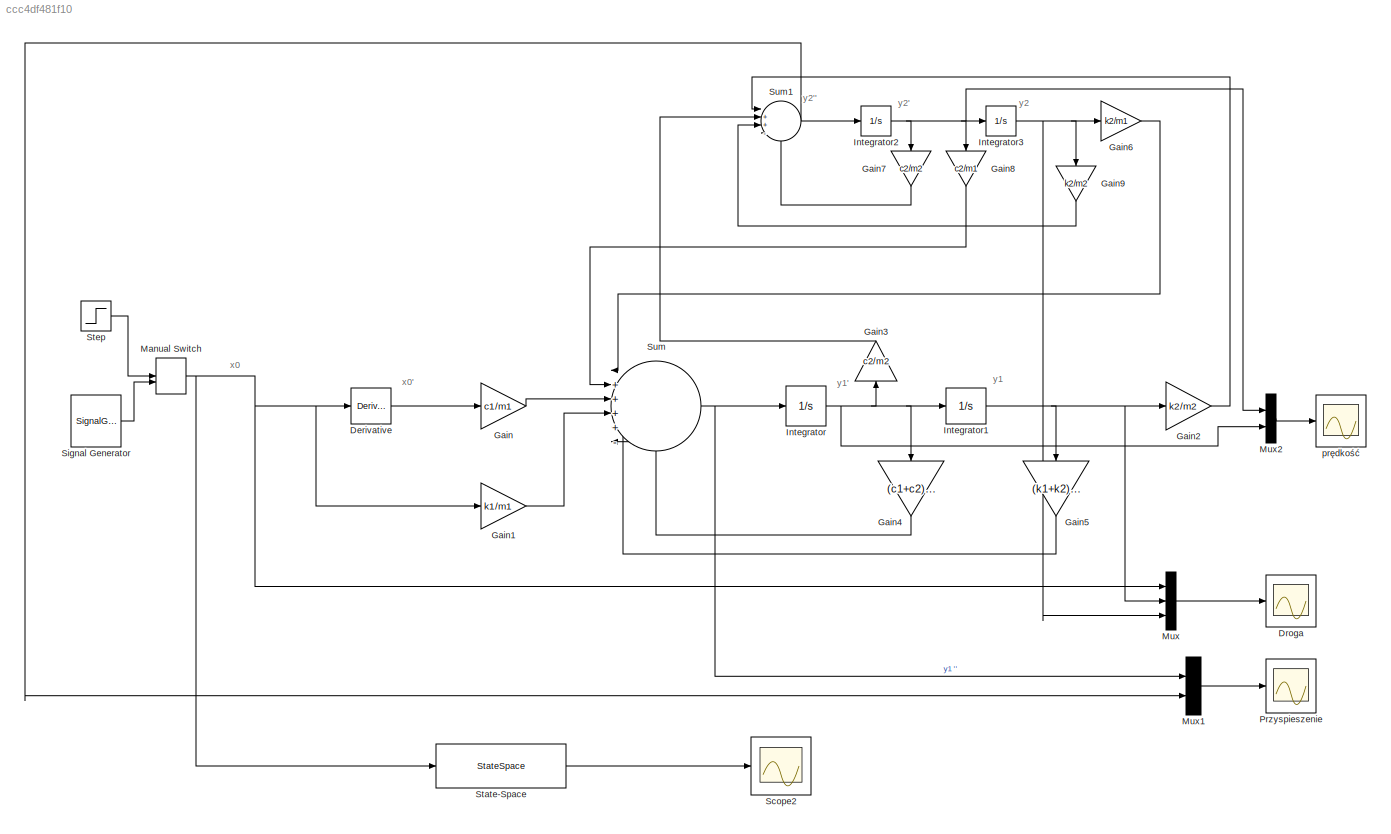
MODEL slx_ccc4df481f10
KIND model
CONFIG AbsTol = auto
CONFIG EnableMultiTasking = off
CONFIG FixedStep = 1/1000
CONFIG MaxStep = auto
CONFIG MinStep = auto
CONFIG RelTol = 1e-3
CONFIG SampleTimeConstraint = Unconstrained
CONFIG SolverName = ode4
CONFIG StartTime = 0.0
CONFIG StopTime = 10.0
BLOCK [Derivative] Derivative
BLOCK [Scope] Droga
  Floating = off
  NumInputPorts = 1
  Ports = [1]
  ScopeSpecificationString = Simulink.scopes.TimeScopeBlockCfg('CurrentConfiguration', extmgr.ConfigurationSet(extmgr.Configuration('Core','General UI',true),extmgr.Configuration('Core','Source UI',true),extmgr.Configuration('Sources','WiredSimulink',true),extmgr.Configuration('Visuals','Time Domain',true,'SerializedDisplays',{struct('MinYLimReal','0.24925','MaxYLimReal','1.65555','YLabelReal','','MinYLimMag','0.24925','MaxYL...<+1433ch>
BLOCK [Gain] Gain
  Gain = c1/m1
BLOCK [Gain] Gain1
  Gain = k1/m1
BLOCK [Gain] Gain2
  Gain = k2/m2
BLOCK [Gain] Gain3
  Gain = c2/m2
  NameLocation = right
BLOCK [Gain] Gain4
  Gain = (c1+c2)/m1
  NameLocation = left
BLOCK [Gain] Gain5
  Gain = (k1+k2)/m1
  NameLocation = left
BLOCK [Gain] Gain6
  Gain = k2/m1
BLOCK [Gain] Gain7
  Gain = c2/m2
  NameLocation = left
BLOCK [Gain] Gain8
  Gain = c2/m1
  NameLocation = left
BLOCK [Gain] Gain9
  Gain = k2/m2
  NameLocation = left
BLOCK [Integrator] Integrator
  Ports = [1, 1]
BLOCK [Integrator] Integrator1
  Ports = [1, 1]
BLOCK [Integrator] Integrator2
  Ports = [1, 1]
BLOCK [Integrator] Integrator3
  Ports = [1, 1]
BLOCK [ManualSwitch] Manual Switch
BLOCK [Mux] Mux
  DisplayOption = bar
  Inputs = 3
  Ports = [3, 1]
BLOCK [Mux] Mux1
  DisplayOption = bar
  Inputs = 2
  Ports = [2, 1]
BLOCK [Mux] Mux2
  DisplayOption = bar
  Inputs = 2
  Ports = [2, 1]
BLOCK [Scope] Przyspieszenie
  Floating = off
  NumInputPorts = 1
  Ports = [1]
  ScopeSpecificationString = Simulink.scopes.TimeScopeBlockCfg('CurrentConfiguration', extmgr.ConfigurationSet(extmgr.Configuration('Core','General UI',true),extmgr.Configuration('Core','Source UI',true),extmgr.Configuration('Sources','WiredSimulink',true,'DataLoggingVariableName','ScopeData1'),extmgr.Configuration('Visuals','Time Domain',true,'SerializedDisplays',{struct('MinYLimReal','-3427.24958','MaxYLimReal','6160.70949'...<+1471ch>
BLOCK [Scope] Scope2
  Floating = off
  NumInputPorts = 1
  Ports = [1]
  ScopeSpecificationString = Simulink.scopes.TimeScopeBlockCfg('CurrentConfiguration', extmgr.ConfigurationSet(extmgr.Configuration('Core','General UI',true),extmgr.Configuration('Core','Source UI',true),extmgr.Configuration('Sources','WiredSimulink',true,'DataLoggingVariableName','ScopeData2'),extmgr.Configuration('Visuals','Time Domain',true,'SerializedDisplays',{struct('MinYLimReal','-36.80702','MaxYLimReal','47.16299','YL...<+1499ch>
BLOCK [SignalGenerator] Signal Generator
  Ports = [0, 1]
  Units = rad/sec
BLOCK [StateSpace] State-Space
  A = A
  B = B
  C = C
  D = D
  InitialCondition = 0
  Ports = [1, 1]
BLOCK [Step] Step
  SampleTime = 0
BLOCK [Sum] Sum
  Inputs = |++++--
  Ports = [6, 1]
BLOCK [Sum] Sum1
  Inputs = |++--
  Ports = [4, 1]
BLOCK [Scope] prędkość
  Floating = off
  NumInputPorts = 1
  Ports = [1]
  ScopeSpecificationString = Simulink.scopes.TimeScopeBlockCfg('CurrentConfiguration', extmgr.ConfigurationSet(extmgr.Configuration('Core','General UI',true),extmgr.Configuration('Core','Source UI',true),extmgr.Configuration('Sources','WiredSimulink',true,'DataLoggingVariableName','ScopeData1'),extmgr.Configuration('Visuals','Time Domain',true,'SerializedDisplays',{struct('MinYLimReal','-35.69572','MaxYLimReal','57.60031','YL...<+1464ch>
ANNOTATION (root): x0
ANNOTATION (root): x0'
ANNOTATION (root): y1
ANNOTATION (root): y1'
ANNOTATION (root): y2
ANNOTATION (root): y2'
ANNOTATION (root): y2''
LINE Derivative:1 -> Gain:1
LINE Gain1:1 -> Sum:4
LINE Gain2:1 -> Sum1:1
LINE Gain3:1 -> Sum1:2
LINE Gain4:1 -> Sum:6
LINE Gain5:1 -> Sum:5
LINE Gain6:1 -> Sum:1
LINE Gain7:1 -> Sum1:4
LINE Gain8:1 -> Sum:2
LINE Gain9:1 -> Sum1:3
LINE Gain:1 -> Sum:3
NET Integrator1:1 -> Gain2:1, Gain5:1, Mux:2
NET Integrator2:1 -> Gain7:1, Gain8:1, Integrator3:1, Mux2:1
NET Integrator3:1 -> Gain6:1, Gain9:1, Mux:3
NET Integrator:1 -> Gain3:1, Gain4:1, Integrator1:1, Mux2:2
NET Manual Switch:1 -> Derivative:1, Gain1:1, Mux:1, State-Space:1
LINE Mux1:1 -> Przyspieszenie:1
LINE Mux2:1 -> prędkość:1
LINE Mux:1 -> Droga:1
LINE Signal Generator:1 -> Manual Switch:2
LINE State-Space:1 -> Scope2:1
LINE Step:1 -> Manual Switch:1
NET Sum1:1 -> Integrator2:1, Mux1:2
NET Sum:1 -> Integrator:1, Mux1:1
note: NET lines group one-source signal fan-out (src -> all destinations, sorted); 1:1 wires keep LINE
